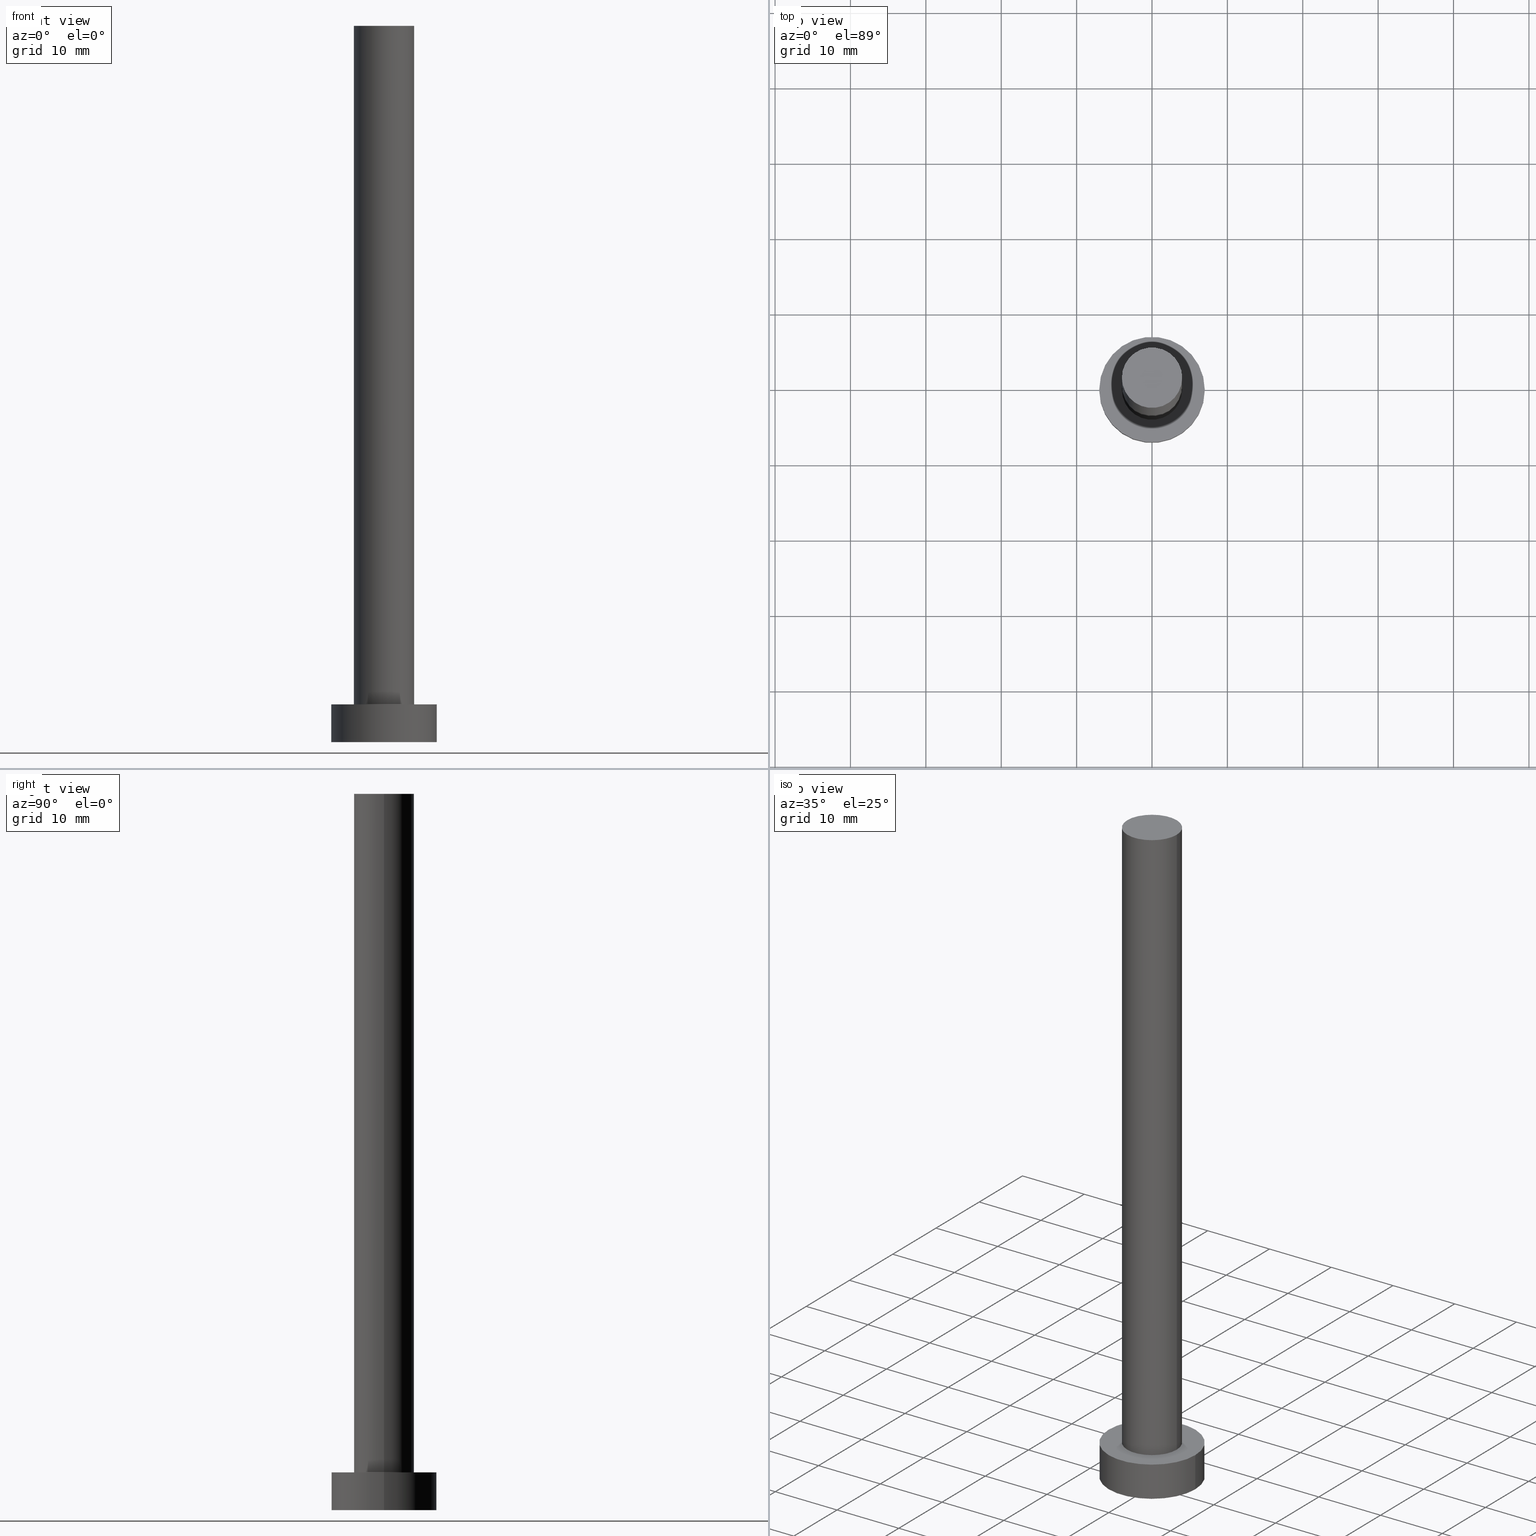
[diagram: canonical four-view strip — front | top / right | iso, engineering-drawing reading convention]
A machine part, canonical four-view strip (front | top / right | iso — engineering-drawing reading convention). The complete STEP part file that produces these views, byte-faithful:
ISO-10303-21;
HEADER;
FILE_DESCRIPTION (( 'STEP AP203' ),
    '1' );
FILE_NAME ('1a43.STEP',
    '2023-02-13T14:54:02',
    ( '' ),
    ( '' ),
    'SwSTEP 2.0',
    'SolidWorks 2019',
    '' );
FILE_SCHEMA (( 'CONFIG_CONTROL_DESIGN' ));
ENDSEC;

DATA;
#1 = LINE ( 'NONE', #160, #156 ) ;
#2 = COORDINATED_UNIVERSAL_TIME_OFFSET ( 1, 0, .AHEAD. ) ;
#3 = ORIENTED_EDGE ( 'NONE', *, *, #147, .F. ) ;
#4 = LOCAL_TIME ( 15, 54, 2.000000000000000000, #59 ) ;
#5 = ORIENTED_EDGE ( 'NONE', *, *, #21, .F. ) ;
#6 = DIRECTION ( 'NONE',  ( 0.000000000000000000, 0.000000000000000000, 1.000000000000000000 ) ) ;
#7 = VERTEX_POINT ( 'NONE', #243 ) ;
#8 = ORIENTED_EDGE ( 'NONE', *, *, #147, .T. ) ;
#9 = PERSON_AND_ORGANIZATION ( #255, #166 ) ;
#10 = DIRECTION ( 'NONE',  ( -0.000000000000000000, -0.000000000000000000, -1.000000000000000000 ) ) ;
#11 = FACE_OUTER_BOUND ( 'NONE', #183, .T. ) ;
#12 = DIRECTION ( 'NONE',  ( 1.000000000000000000, 0.000000000000000000, -0.000000000000000000 ) ) ;
#13 = DIRECTION ( 'NONE',  ( -1.000000000000000000, 0.000000000000000000, 0.000000000000000000 ) ) ;
#14 = DIRECTION ( 'NONE',  ( -0.000000000000000000, -0.000000000000000000, -1.000000000000000000 ) ) ;
#15 = DIRECTION ( 'NONE',  ( 1.000000000000000000, 0.000000000000000000, -0.000000000000000000 ) ) ;
#16 = APPROVAL_PERSON_ORGANIZATION ( #207, #98, #232 ) ;
#17 = APPROVAL ( #99, 'NEUR�EN�' ) ;
#18 = CARTESIAN_POINT ( 'NONE',  ( 0.000000000000000000, 0.000000000000000000, 95.00000000000000000 ) ) ;
#19 = VECTOR ( 'NONE', #210, 1000.000000000000000 ) ;
#20 = AXIS2_PLACEMENT_3D ( 'NONE', #119, #35, #15 ) ;
#21 = EDGE_CURVE ( 'NONE', #101, #57, #169, .T. ) ;
#22 = EDGE_LOOP ( 'NONE', ( #39, #62, #213, #161 ) ) ;
#23 = DIRECTION ( 'NONE',  ( -1.000000000000000000, 0.000000000000000000, 0.000000000000000000 ) ) ;
#24 = CC_DESIGN_PERSON_AND_ORGANIZATION_ASSIGNMENT ( #137, #25, ( #212 ) ) ;
#25 = PERSON_AND_ORGANIZATION_ROLE ( 'creator' ) ;
#26 = VERTEX_POINT ( 'NONE', #71 ) ;
#27 = CARTESIAN_POINT ( 'NONE',  ( 0.000000000000000000, 0.000000000000000000, 5.000000000000000000 ) ) ;
#28 = EDGE_LOOP ( 'NONE', ( #240, #3 ) ) ;
#29 = PERSON_AND_ORGANIZATION_ROLE ( 'creator' ) ;
#30 = DIRECTION ( 'NONE',  ( 0.000000000000000000, 0.000000000000000000, 1.000000000000000000 ) ) ;
#31 = ORIENTED_EDGE ( 'NONE', *, *, #77, .F. ) ;
#32 = DATE_AND_TIME ( #144, #171 ) ;
#33 = APPLICATION_PROTOCOL_DEFINITION ( 'international standard', 'config_control_design', 1994, #110 ) ;
#34 = AXIS2_PLACEMENT_3D ( 'NONE', #195, #194, #12 ) ;
#35 = DIRECTION ( 'NONE',  ( 0.000000000000000000, 0.000000000000000000, 1.000000000000000000 ) ) ;
#36 = ADVANCED_FACE ( 'NONE', ( #124, #151 ), #51, .T. ) ;
#37 = EDGE_CURVE ( 'NONE', #114, #26, #89, .T. ) ;
#38 = CLOSED_SHELL ( 'NONE', ( #244, #79, #68, #36, #159, #116, #198 ) ) ;
#39 = ORIENTED_EDGE ( 'NONE', *, *, #138, .F. ) ;
#40 = SECURITY_CLASSIFICATION ( '', '', #188 ) ;
#41 = CC_DESIGN_DATE_AND_TIME_ASSIGNMENT ( #45, #123, ( #40 ) ) ;
#42 = CALENDAR_DATE ( 2023, 13, 2 ) ;
#43 = ORIENTED_EDGE ( 'NONE', *, *, #95, .T. ) ;
#44 = VERTEX_POINT ( 'NONE', #72 ) ;
#45 = DATE_AND_TIME ( #70, #252 ) ;
#46 = ORIENTED_EDGE ( 'NONE', *, *, #251, .F. ) ;
#47 = PERSON_AND_ORGANIZATION ( #255, #166 ) ;
#48 = DIRECTION ( 'NONE',  ( 0.000000000000000000, 0.000000000000000000, 1.000000000000000000 ) ) ;
#49 = AXIS2_PLACEMENT_3D ( 'NONE', #50, #66, #13 ) ;
#50 = CARTESIAN_POINT ( 'NONE',  ( 0.000000000000000000, 0.000000000000000000, 95.00000000000000000 ) ) ;
#51 = PLANE ( 'NONE',  #34 ) ;
#52 = PERSON_AND_ORGANIZATION ( #255, #166 ) ;
#53 = FACE_OUTER_BOUND ( 'NONE', #64, .T. ) ;
#54 = CARTESIAN_POINT ( 'NONE',  ( 0.000000000000000000, 0.000000000000000000, 5.000000000000000000 ) ) ;
#55 = EDGE_CURVE ( 'NONE', #84, #26, #181, .T. ) ;
#56 = APPROVAL_DATE_TIME ( #230, #174 ) ;
#57 = VERTEX_POINT ( 'NONE', #153 ) ;
#58 = CC_DESIGN_PERSON_AND_ORGANIZATION_ASSIGNMENT ( #52, #190, ( #233 ) ) ;
#59 = COORDINATED_UNIVERSAL_TIME_OFFSET ( 1, 0, .AHEAD. ) ;
#60 = ORIENTED_EDGE ( 'NONE', *, *, #21, .T. ) ;
#61 = CC_DESIGN_APPROVAL ( #174, ( #212 ) ) ;
#62 = ORIENTED_EDGE ( 'NONE', *, *, #121, .T. ) ;
#63 = AXIS2_PLACEMENT_3D ( 'NONE', #100, #192, #248 ) ;
#64 = EDGE_LOOP ( 'NONE', ( #5, #31, #43, #199 ) ) ;
#65 = COORDINATED_UNIVERSAL_TIME_OFFSET ( 1, 0, .AHEAD. ) ;
#66 = DIRECTION ( 'NONE',  ( -0.000000000000000000, -0.000000000000000000, -1.000000000000000000 ) ) ;
#67 = ORIENTED_EDGE ( 'NONE', *, *, #95, .F. ) ;
#68 = ADVANCED_FACE ( 'NONE', ( #203 ), #102, .T. ) ;
#69 = DIRECTION ( 'NONE',  ( 1.000000000000000000, 0.000000000000000000, -0.000000000000000000 ) ) ;
#70 = CALENDAR_DATE ( 2023, 13, 2 ) ;
#71 = CARTESIAN_POINT ( 'NONE',  ( -7.000000000000000000, 0.000000000000000000, 0.000000000000000000 ) ) ;
#72 = CARTESIAN_POINT ( 'NONE',  ( 7.000000000000000000, 8.572527594031473190E-16, 5.000000000000000000 ) ) ;
#73 = CARTESIAN_POINT ( 'NONE',  ( 0.000000000000000000, 0.000000000000000000, 5.000000000000000000 ) ) ;
#74 = ADVANCED_BREP_SHAPE_REPRESENTATION ( '1a43', ( #76, #131 ), #87 ) ;
#75 = DIRECTION ( 'NONE',  ( 1.000000000000000000, 0.000000000000000000, 0.000000000000000000 ) ) ;
#76 = MANIFOLD_SOLID_BREP ( 'P�idat vysunut�m3', #38 ) ;
#77 = EDGE_CURVE ( 'NONE', #7, #101, #120, .T. ) ;
#78 = CALENDAR_DATE ( 2023, 13, 2 ) ;
#79 = ADVANCED_FACE ( 'NONE', ( #226 ), #179, .T. ) ;
#80 = CIRCLE ( 'NONE', #189, 4.000000000000000000 ) ;
#81 = PRODUCT_DEFINITION_SHAPE ( 'NONE', 'NONE',  #212 ) ;
#82 = ORIENTED_EDGE ( 'NONE', *, *, #90, .T. ) ;
#83 = APPROVAL_STATUS ( 'not_yet_approved' ) ;
#84 = VERTEX_POINT ( 'NONE', #92 ) ;
#85 = FACE_OUTER_BOUND ( 'NONE', #115, .T. ) ;
#86 = PERSON_AND_ORGANIZATION ( #255, #166 ) ;
#87 =( GEOMETRIC_REPRESENTATION_CONTEXT ( 3 ) GLOBAL_UNCERTAINTY_ASSIGNED_CONTEXT ( ( #94 ) ) GLOBAL_UNIT_ASSIGNED_CONTEXT ( ( #206, #142, #103 ) ) REPRESENTATION_CONTEXT ( 'NONE', 'WORKASPACE' ) );
#88 = DIRECTION ( 'NONE',  ( 0.000000000000000000, 0.000000000000000000, 1.000000000000000000 ) ) ;
#89 = LINE ( 'NONE', #152, #222 ) ;
#90 = EDGE_CURVE ( 'NONE', #114, #44, #128, .T. ) ;
#91 = DIRECTION ( 'NONE',  ( 1.000000000000000000, 0.000000000000000000, 0.000000000000000000 ) ) ;
#92 = CARTESIAN_POINT ( 'NONE',  ( 7.000000000000000000, 8.572527594031473190E-16, 0.000000000000000000 ) ) ;
#93 = AXIS2_PLACEMENT_3D ( 'NONE', #191, #10, #167 ) ;
#94 = UNCERTAINTY_MEASURE_WITH_UNIT (LENGTH_MEASURE( 1.000000000000000082E-05 ), #206, 'distance_accuracy_value', 'NONE');
#95 = EDGE_CURVE ( 'NONE', #7, #96, #223, .T. ) ;
#96 = VERTEX_POINT ( 'NONE', #211 ) ;
#97 = ORIENTED_EDGE ( 'NONE', *, *, #138, .T. ) ;
#98 = APPROVAL ( #193, 'NEUR�EN�' ) ;
#99 = APPROVAL_STATUS ( 'not_yet_approved' ) ;
#100 = CARTESIAN_POINT ( 'NONE',  ( 0.000000000000000000, 0.000000000000000000, 5.000000000000000000 ) ) ;
#101 = VERTEX_POINT ( 'NONE', #172 ) ;
#102 = CYLINDRICAL_SURFACE ( 'NONE', #93, 7.000000000000000000 ) ;
#103 =( NAMED_UNIT ( * ) SI_UNIT ( $, .STERADIAN. ) SOLID_ANGLE_UNIT ( ) );
#104 = EDGE_CURVE ( 'NONE', #96, #57, #109, .T. ) ;
#105 = DIRECTION ( 'NONE',  ( -0.000000000000000000, -0.000000000000000000, -1.000000000000000000 ) ) ;
#106 = CIRCLE ( 'NONE', #63, 4.000000000000000000 ) ;
#107 = DIRECTION ( 'NONE',  ( 1.000000000000000000, 0.000000000000000000, 0.000000000000000000 ) ) ;
#108 = CC_DESIGN_APPROVAL ( #17, ( #234 ) ) ;
#109 = CIRCLE ( 'NONE', #150, 4.000000000000000000 ) ;
#110 = APPLICATION_CONTEXT ( 'configuration controlled 3d designs of mechanical parts and assemblies' ) ;
#111 = DIRECTION ( 'NONE',  ( -0.000000000000000000, -0.000000000000000000, -1.000000000000000000 ) ) ;
#112 = APPLICATION_CONTEXT ( 'configuration controlled 3d designs of mechanical parts and assemblies' ) ;
#113 = DIRECTION ( 'NONE',  ( -0.000000000000000000, -0.000000000000000000, -1.000000000000000000 ) ) ;
#114 = VERTEX_POINT ( 'NONE', #224 ) ;
#115 = EDGE_LOOP ( 'NONE', ( #117, #231 ) ) ;
#116 = ADVANCED_FACE ( 'NONE', ( #53 ), #130, .T. ) ;
#117 = ORIENTED_EDGE ( 'NONE', *, *, #238, .F. ) ;
#118 = DATE_AND_TIME ( #141, #163 ) ;
#119 = CARTESIAN_POINT ( 'NONE',  ( 0.000000000000000000, 0.000000000000000000, 95.00000000000000000 ) ) ;
#120 = CIRCLE ( 'NONE', #127, 4.000000000000000000 ) ;
#121 = EDGE_CURVE ( 'NONE', #44, #84, #1, .T. ) ;
#122 = MECHANICAL_CONTEXT ( 'NONE', #110, 'mechanical' ) ;
#123 = DATE_TIME_ROLE ( 'classification_date' ) ;
#124 = FACE_BOUND ( 'NONE', #28, .T. ) ;
#125 = DIRECTION ( 'NONE',  ( 0.000000000000000000, 0.000000000000000000, 1.000000000000000000 ) ) ;
#126 = APPLICATION_PROTOCOL_DEFINITION ( 'international standard', 'config_control_design', 1994, #112 ) ;
#127 = AXIS2_PLACEMENT_3D ( 'NONE', #18, #173, #75 ) ;
#128 = CIRCLE ( 'NONE', #236, 7.000000000000000000 ) ;
#129 = AXIS2_PLACEMENT_3D ( 'NONE', #27, #6, #217 ) ;
#130 = CYLINDRICAL_SURFACE ( 'NONE', #245, 4.000000000000000000 ) ;
#131 = AXIS2_PLACEMENT_3D ( 'NONE', #201, #165, #208 ) ;
#132 = CARTESIAN_POINT ( 'NONE',  ( -4.000000000000000000, 0.000000000000000000, 95.00000000000000000 ) ) ;
#133 = CC_DESIGN_PERSON_AND_ORGANIZATION_ASSIGNMENT ( #47, #29, ( #234 ) ) ;
#134 = AXIS2_PLACEMENT_3D ( 'NONE', #242, #30, #69 ) ;
#135 = ORIENTED_EDGE ( 'NONE', *, *, #238, .T. ) ;
#136 = APPROVAL_PERSON_ORGANIZATION ( #187, #174, #145 ) ;
#137 = PERSON_AND_ORGANIZATION ( #255, #166 ) ;
#138 = EDGE_CURVE ( 'NONE', #44, #114, #180, .T. ) ;
#139 = APPROVAL_DATE_TIME ( #235, #98 ) ;
#140 = EDGE_LOOP ( 'NONE', ( #216, #143, #214, #135 ) ) ;
#141 = CALENDAR_DATE ( 2023, 13, 2 ) ;
#142 =( NAMED_UNIT ( * ) PLANE_ANGLE_UNIT ( ) SI_UNIT ( $, .RADIAN. ) );
#143 = ORIENTED_EDGE ( 'NONE', *, *, #90, .F. ) ;
#144 = CALENDAR_DATE ( 2023, 13, 2 ) ;
#145 = APPROVAL_ROLE ( '' ) ;
#146 = EDGE_LOOP ( 'NONE', ( #82, #97 ) ) ;
#147 = EDGE_CURVE ( 'NONE', #57, #96, #106, .T. ) ;
#148 = CC_DESIGN_SECURITY_CLASSIFICATION ( #40, ( #234 ) ) ;
#149 = CARTESIAN_POINT ( 'NONE',  ( 0.000000000000000000, 0.000000000000000000, 95.00000000000000000 ) ) ;
#150 = AXIS2_PLACEMENT_3D ( 'NONE', #253, #228, #250 ) ;
#151 = FACE_OUTER_BOUND ( 'NONE', #146, .T. ) ;
#152 = CARTESIAN_POINT ( 'NONE',  ( -7.000000000000000000, 0.000000000000000000, 5.000000000000000000 ) ) ;
#153 = CARTESIAN_POINT ( 'NONE',  ( 4.000000000000000000, 4.898587196589411843E-16, 5.000000000000000000 ) ) ;
#154 = DIRECTION ( 'NONE',  ( 0.000000000000000000, 0.000000000000000000, 1.000000000000000000 ) ) ;
#155 = CC_DESIGN_PERSON_AND_ORGANIZATION_ASSIGNMENT ( #9, #186, ( #234 ) ) ;
#156 = VECTOR ( 'NONE', #113, 1000.000000000000000 ) ;
#157 = DIRECTION ( 'NONE',  ( -1.000000000000000000, 0.000000000000000000, 0.000000000000000000 ) ) ;
#158 = CARTESIAN_POINT ( 'NONE',  ( 0.000000000000000000, 0.000000000000000000, 95.00000000000000000 ) ) ;
#159 = ADVANCED_FACE ( 'NONE', ( #85 ), #246, .F. ) ;
#160 = CARTESIAN_POINT ( 'NONE',  ( 7.000000000000000000, 8.572527594031473190E-16, 5.000000000000000000 ) ) ;
#161 = ORIENTED_EDGE ( 'NONE', *, *, #37, .F. ) ;
#162 = COORDINATED_UNIVERSAL_TIME_OFFSET ( 1, 0, .AHEAD. ) ;
#163 = LOCAL_TIME ( 15, 54, 2.000000000000000000, #162 ) ;
#164 = CIRCLE ( 'NONE', #225, 7.000000000000000000 ) ;
#165 = DIRECTION ( 'NONE',  ( 0.000000000000000000, 0.000000000000000000, 1.000000000000000000 ) ) ;
#166 = ORGANIZATION ( 'NEUR�EN�', 'NEUR�EN�', '' ) ;
#167 = DIRECTION ( 'NONE',  ( -1.000000000000000000, 0.000000000000000000, 0.000000000000000000 ) ) ;
#168 = DIRECTION ( 'NONE',  ( 1.000000000000000000, 0.000000000000000000, 0.000000000000000000 ) ) ;
#169 = LINE ( 'NONE', #247, #254 ) ;
#170 = FACE_OUTER_BOUND ( 'NONE', #185, .T. ) ;
#171 = LOCAL_TIME ( 15, 54, 2.000000000000000000, #65 ) ;
#172 = CARTESIAN_POINT ( 'NONE',  ( 4.000000000000000000, 4.898587196589411843E-16, 95.00000000000000000 ) ) ;
#173 = DIRECTION ( 'NONE',  ( 0.000000000000000000, 0.000000000000000000, 1.000000000000000000 ) ) ;
#174 = APPROVAL ( #83, 'NEUR�EN�' ) ;
#175 = DIRECTION ( 'NONE',  ( -0.000000000000000000, -0.000000000000000000, -1.000000000000000000 ) ) ;
#176 = LOCAL_TIME ( 15, 54, 2.000000000000000000, #184 ) ;
#177 = CC_DESIGN_APPROVAL ( #98, ( #40 ) ) ;
#178 = AXIS2_PLACEMENT_3D ( 'NONE', #221, #125, #249 ) ;
#179 = CYLINDRICAL_SURFACE ( 'NONE', #237, 7.000000000000000000 ) ;
#180 = CIRCLE ( 'NONE', #129, 7.000000000000000000 ) ;
#181 = CIRCLE ( 'NONE', #178, 7.000000000000000000 ) ;
#182 = ORIENTED_EDGE ( 'NONE', *, *, #77, .T. ) ;
#183 = EDGE_LOOP ( 'NONE', ( #182, #204 ) ) ;
#184 = COORDINATED_UNIVERSAL_TIME_OFFSET ( 1, 0, .AHEAD. ) ;
#185 = EDGE_LOOP ( 'NONE', ( #46, #60, #8, #67 ) ) ;
#186 = PERSON_AND_ORGANIZATION_ROLE ( 'design_supplier' ) ;
#187 = PERSON_AND_ORGANIZATION ( #255, #166 ) ;
#188 = SECURITY_CLASSIFICATION_LEVEL ( 'unclassified' ) ;
#189 = AXIS2_PLACEMENT_3D ( 'NONE', #149, #48, #168 ) ;
#190 = PERSON_AND_ORGANIZATION_ROLE ( 'design_owner' ) ;
#191 = CARTESIAN_POINT ( 'NONE',  ( 0.000000000000000000, 0.000000000000000000, 5.000000000000000000 ) ) ;
#192 = DIRECTION ( 'NONE',  ( 0.000000000000000000, 0.000000000000000000, 1.000000000000000000 ) ) ;
#193 = APPROVAL_STATUS ( 'not_yet_approved' ) ;
#194 = DIRECTION ( 'NONE',  ( 0.000000000000000000, 0.000000000000000000, 1.000000000000000000 ) ) ;
#195 = CARTESIAN_POINT ( 'NONE',  ( 0.000000000000000000, 0.000000000000000000, 5.000000000000000000 ) ) ;
#196 = APPROVAL_PERSON_ORGANIZATION ( #219, #17, #205 ) ;
#197 = CC_DESIGN_DATE_AND_TIME_ASSIGNMENT ( #118, #241, ( #212 ) ) ;
#198 = ADVANCED_FACE ( 'NONE', ( #11 ), #220, .T. ) ;
#199 = ORIENTED_EDGE ( 'NONE', *, *, #104, .T. ) ;
#200 = SHAPE_DEFINITION_REPRESENTATION ( #81, #74 ) ;
#201 = CARTESIAN_POINT ( 'NONE',  ( 0.000000000000000000, 0.000000000000000000, 0.000000000000000000 ) ) ;
#202 = APPROVAL_DATE_TIME ( #32, #17 ) ;
#203 = FACE_OUTER_BOUND ( 'NONE', #140, .T. ) ;
#204 = ORIENTED_EDGE ( 'NONE', *, *, #251, .T. ) ;
#205 = APPROVAL_ROLE ( '' ) ;
#206 =( LENGTH_UNIT ( ) NAMED_UNIT ( * ) SI_UNIT ( .MILLI., .METRE. ) );
#207 = PERSON_AND_ORGANIZATION ( #255, #166 ) ;
#208 = DIRECTION ( 'NONE',  ( 1.000000000000000000, 0.000000000000000000, 0.000000000000000000 ) ) ;
#209 = PRODUCT_RELATED_PRODUCT_CATEGORY ( 'detail', '', ( #233 ) ) ;
#210 = DIRECTION ( 'NONE',  ( -0.000000000000000000, -0.000000000000000000, -1.000000000000000000 ) ) ;
#211 = CARTESIAN_POINT ( 'NONE',  ( -4.000000000000000000, 0.000000000000000000, 5.000000000000000000 ) ) ;
#212 = PRODUCT_DEFINITION ( 'NEZN�M�', '', #234, #227 ) ;
#213 = ORIENTED_EDGE ( 'NONE', *, *, #55, .T. ) ;
#214 = ORIENTED_EDGE ( 'NONE', *, *, #37, .T. ) ;
#215 = CARTESIAN_POINT ( 'NONE',  ( 0.000000000000000000, 0.000000000000000000, 0.000000000000000000 ) ) ;
#216 = ORIENTED_EDGE ( 'NONE', *, *, #121, .F. ) ;
#217 = DIRECTION ( 'NONE',  ( 1.000000000000000000, 0.000000000000000000, 0.000000000000000000 ) ) ;
#218 = PERSON_AND_ORGANIZATION_ROLE ( 'classification_officer' ) ;
#219 = PERSON_AND_ORGANIZATION ( #255, #166 ) ;
#220 = PLANE ( 'NONE',  #20 ) ;
#221 = CARTESIAN_POINT ( 'NONE',  ( 0.000000000000000000, 0.000000000000000000, 0.000000000000000000 ) ) ;
#222 = VECTOR ( 'NONE', #14, 1000.000000000000000 ) ;
#223 = LINE ( 'NONE', #132, #19 ) ;
#224 = CARTESIAN_POINT ( 'NONE',  ( -7.000000000000000000, 0.000000000000000000, 5.000000000000000000 ) ) ;
#225 = AXIS2_PLACEMENT_3D ( 'NONE', #215, #88, #91 ) ;
#226 = FACE_OUTER_BOUND ( 'NONE', #22, .T. ) ;
#227 = DESIGN_CONTEXT ( 'detailed design', #112, 'design' ) ;
#228 = DIRECTION ( 'NONE',  ( 0.000000000000000000, 0.000000000000000000, 1.000000000000000000 ) ) ;
#229 = CC_DESIGN_PERSON_AND_ORGANIZATION_ASSIGNMENT ( #86, #218, ( #40 ) ) ;
#230 = DATE_AND_TIME ( #78, #176 ) ;
#231 = ORIENTED_EDGE ( 'NONE', *, *, #55, .F. ) ;
#232 = APPROVAL_ROLE ( '' ) ;
#233 = PRODUCT ( '1a43', '1a43', '', ( #122 ) ) ;
#234 = PRODUCT_DEFINITION_FORMATION_WITH_SPECIFIED_SOURCE ( 'LIBOVOLN�', '', #233, .NOT_KNOWN. ) ;
#235 = DATE_AND_TIME ( #42, #4 ) ;
#236 = AXIS2_PLACEMENT_3D ( 'NONE', #54, #154, #107 ) ;
#237 = AXIS2_PLACEMENT_3D ( 'NONE', #73, #175, #157 ) ;
#238 = EDGE_CURVE ( 'NONE', #26, #84, #164, .T. ) ;
#239 = CYLINDRICAL_SURFACE ( 'NONE', #49, 4.000000000000000000 ) ;
#240 = ORIENTED_EDGE ( 'NONE', *, *, #104, .F. ) ;
#241 = DATE_TIME_ROLE ( 'creation_date' ) ;
#242 = CARTESIAN_POINT ( 'NONE',  ( 0.000000000000000000, 0.000000000000000000, 0.000000000000000000 ) ) ;
#243 = CARTESIAN_POINT ( 'NONE',  ( -4.000000000000000000, 0.000000000000000000, 95.00000000000000000 ) ) ;
#244 = ADVANCED_FACE ( 'NONE', ( #170 ), #239, .T. ) ;
#245 = AXIS2_PLACEMENT_3D ( 'NONE', #158, #111, #23 ) ;
#246 = PLANE ( 'NONE',  #134 ) ;
#247 = CARTESIAN_POINT ( 'NONE',  ( 4.000000000000000000, 4.898587196589411843E-16, 95.00000000000000000 ) ) ;
#248 = DIRECTION ( 'NONE',  ( 1.000000000000000000, 0.000000000000000000, 0.000000000000000000 ) ) ;
#249 = DIRECTION ( 'NONE',  ( 1.000000000000000000, 0.000000000000000000, 0.000000000000000000 ) ) ;
#250 = DIRECTION ( 'NONE',  ( 1.000000000000000000, 0.000000000000000000, 0.000000000000000000 ) ) ;
#251 = EDGE_CURVE ( 'NONE', #101, #7, #80, .T. ) ;
#252 = LOCAL_TIME ( 15, 54, 2.000000000000000000, #2 ) ;
#253 = CARTESIAN_POINT ( 'NONE',  ( 0.000000000000000000, 0.000000000000000000, 5.000000000000000000 ) ) ;
#254 = VECTOR ( 'NONE', #105, 1000.000000000000000 ) ;
#255 = PERSON ( 'NEUR�EN�', 'NEUR�EN�', 'NEUR�EN�', ('NEUR�EN�'), ('NEUR�EN�'), ('NEUR�EN�') ) ;
ENDSEC;
END-ISO-10303-21;
